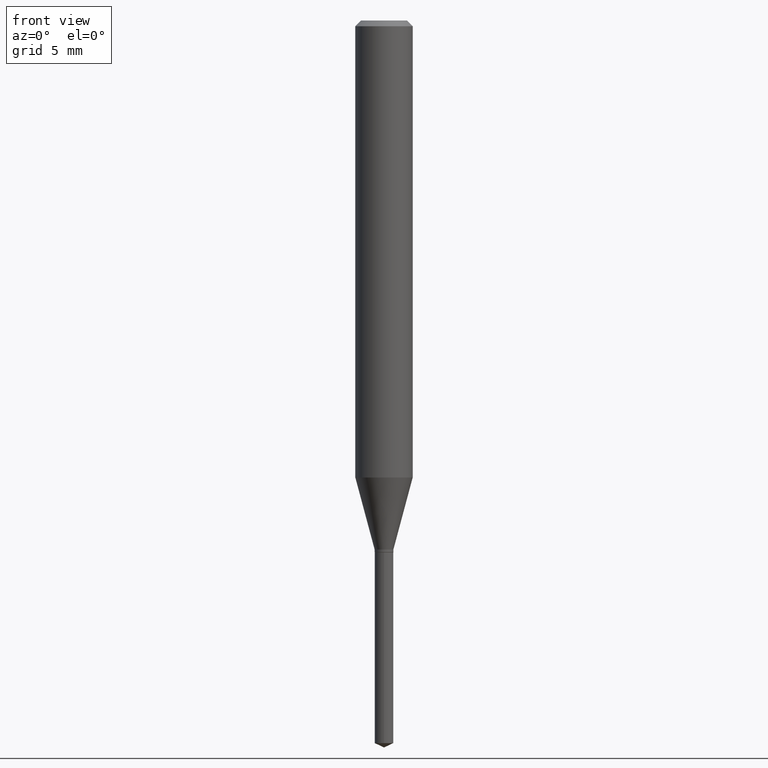
[diagram: clean part render]
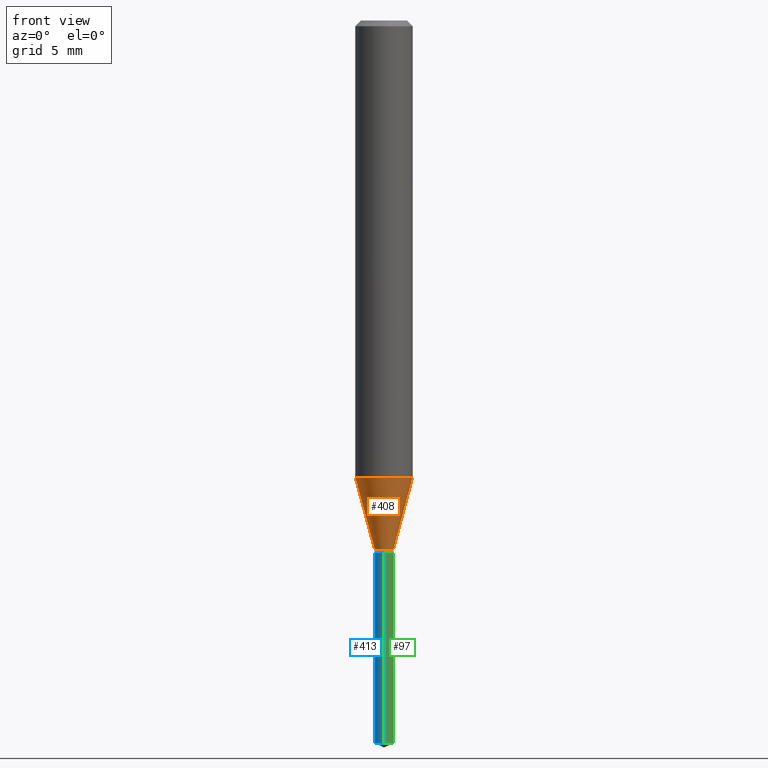
[diagram: same view with three faces highlighted in distinct colors, each labeled with its STEP entity id]
A machine part, front view with three faces highlighted in distinct colors.
Their STEP definitions:

[orange] entity #408 — the highlighted conical surface has half-angle 15 deg.
#1 = VERTEX_POINT ( 'NONE', #330 ) ;
#3 = AXIS2_PLACEMENT_3D ( 'NONE', #60, #381, #70 ) ;
#26 = DIRECTION ( 'NONE',  ( -0.2588190451025213501, 5.211531920934551042E-15, 0.9659258262890682012 ) ) ;
#58 = CARTESIAN_POINT ( 'NONE',  ( 2.299598989431700529E-29, -3.283217900026443125E-15, -0.9403509803991370042 ) ) ;
#60 = CARTESIAN_POINT ( 'NONE',  ( 2.662381889293757988E-29, -3.801175733598532543E-15, -1.088700000000000001 ) ) ;
#67 = FACE_OUTER_BOUND ( 'NONE', #385, .T. ) ;
#70 = DIRECTION ( 'NONE',  ( 1.000000000000000000, -6.982962677686261977E-15, 0.000000000000000000 ) ) ;
#76 = VERTEX_POINT ( 'NONE', #443 ) ;
#88 = EDGE_CURVE ( 'NONE', #188, #348, #405, .T. ) ;
#89 = ORIENTED_EDGE ( 'NONE', *, *, #480, .F. ) ;
#94 = CARTESIAN_POINT ( 'NONE',  ( -0.01930000000000000118, -3.673293411144767685E-15, -1.088700000000000001 ) ) ;
#106 = VECTOR ( 'NONE', #26, 39.37007874015747433 ) ;
#107 = CONICAL_SURFACE ( 'NONE', #195, 0.01930000000000000118, 0.2617993877991500740 ) ;
#126 = EDGE_CURVE ( 'NONE', #188, #76, #223, .T. ) ;
#130 = DIRECTION ( 'NONE',  ( 1.000000000000000000, -6.982962677686261977E-15, 0.000000000000000000 ) ) ;
#140 = CARTESIAN_POINT ( 'NONE',  ( -0.05905000000000010241, -2.863642414560104027E-15, -0.9403509803991370042 ) ) ;
#159 = ORIENTED_EDGE ( 'NONE', *, *, #88, .F. ) ;
#170 = VECTOR ( 'NONE', #341, 39.37007874015747433 ) ;
#188 = VERTEX_POINT ( 'NONE', #94 ) ;
#192 = DIRECTION ( 'NONE',  ( -2.445468806185136597E-29, 3.491481338843145583E-15, 1.000000000000000000 ) ) ;
#195 = AXIS2_PLACEMENT_3D ( 'NONE', #377, #192, #130 ) ;
#210 = DIRECTION ( 'NONE',  ( 1.000000000000000000, -6.982962677686267499E-15, 0.000000000000000000 ) ) ;
#214 = CIRCLE ( 'NONE', #442, 0.05905000000000010935 ) ;
#223 = CIRCLE ( 'NONE', #3, 0.01930000000000000118 ) ;
#244 = LINE ( 'NONE', #275, #170 ) ;
#259 = CARTESIAN_POINT ( 'NONE',  ( -0.01930000000000000118, -3.664040985596833322E-15, -1.088700000000000001 ) ) ;
#275 = CARTESIAN_POINT ( 'NONE',  ( 0.01930000000000000118, -3.935946913277877352E-15, -1.088700000000000001 ) ) ;
#330 = CARTESIAN_POINT ( 'NONE',  ( 0.05905000000000010241, -3.695561846143818440E-15, -0.9403509803991370042 ) ) ;
#341 = DIRECTION ( 'NONE',  ( 0.2588190451025213501, 1.565188264969621968E-15, 0.9659258262890682012 ) ) ;
#344 = ORIENTED_EDGE ( 'NONE', *, *, #126, .T. ) ;
#348 = VERTEX_POINT ( 'NONE', #140 ) ;
#368 = EDGE_CURVE ( 'NONE', #76, #1, #244, .T. ) ;
#377 = CARTESIAN_POINT ( 'NONE',  ( 2.662381889293757988E-29, -3.801175733598532543E-15, -1.088700000000000001 ) ) ;
#381 = DIRECTION ( 'NONE',  ( -2.445468806185136597E-29, 3.491481338843145583E-15, 1.000000000000000000 ) ) ;
#382 = ORIENTED_EDGE ( 'NONE', *, *, #368, .T. ) ;
#385 = EDGE_LOOP ( 'NONE', ( #159, #344, #382, #89 ) ) ;
#405 = LINE ( 'NONE', #259, #106 ) ;
#408 = ADVANCED_FACE ( 'NONE', ( #67 ), #107, .T. ) ;
#442 = AXIS2_PLACEMENT_3D ( 'NONE', #58, #468, #210 ) ;
#443 = CARTESIAN_POINT ( 'NONE',  ( 0.01930000000000000118, -3.935946913277877352E-15, -1.088700000000000001 ) ) ;
#468 = DIRECTION ( 'NONE',  ( -2.445468806185136597E-29, 3.491481338843145583E-15, 1.000000000000000000 ) ) ;
#480 = EDGE_CURVE ( 'NONE', #348, #1, #214, .T. ) ;

[blue] entity #413 — the highlighted cylindrical surface (edge-blend (fillet) strip) has radius 0.4902 mm, axis along (-0, 0, 1).
#14 = CARTESIAN_POINT ( 'NONE',  ( 3.636657855806963500E-29, -5.192182022620209705E-15, -1.487100262197608380 ) ) ;
#17 = CARTESIAN_POINT ( 'NONE',  ( 1.371347480017260423E-16, 0.01929999999999617785, -1.094499999999999806 ) ) ;
#18 = FACE_OUTER_BOUND ( 'NONE', #171, .T. ) ;
#78 = ORIENTED_EDGE ( 'NONE', *, *, #270, .T. ) ;
#138 = AXIS2_PLACEMENT_3D ( 'NONE', #384, #153, #450 ) ;
#144 = LINE ( 'NONE', #288, #338 ) ;
#153 = DIRECTION ( 'NONE',  ( -2.445470214571802116E-29, 3.491479321953280158E-15, 1.000000000000000000 ) ) ;
#161 = CARTESIAN_POINT ( 'NONE',  ( -1.347711796793085704E-16, -0.01930000000000519148, -1.487100262197608380 ) ) ;
#171 = EDGE_LOOP ( 'NONE', ( #440, #78, #281, #261 ) ) ;
#172 = DIRECTION ( 'NONE',  ( -6.982962677686265133E-15, -1.000000000000000000, 0.000000000000000000 ) ) ;
#174 = EDGE_CURVE ( 'NONE', #175, #367, #370, .T. ) ;
#175 = VERTEX_POINT ( 'NONE', #181 ) ;
#176 = DIRECTION ( 'NONE',  ( -2.445470214571802116E-29, 3.491479321953280158E-15, 1.000000000000000000 ) ) ;
#177 = AXIS2_PLACEMENT_3D ( 'NONE', #401, #176, #172 ) ;
#181 = CARTESIAN_POINT ( 'NONE',  ( 1.371347480017357058E-16, 0.01929999999999481436, -1.487100262197608380 ) ) ;
#193 = AXIS2_PLACEMENT_3D ( 'NONE', #14, #455, #272 ) ;
#251 = VERTEX_POINT ( 'NONE', #399 ) ;
#258 = DIRECTION ( 'NONE',  ( -2.445470214571802396E-29, 3.491479321953280158E-15, 1.000000000000000000 ) ) ;
#261 = ORIENTED_EDGE ( 'NONE', *, *, #400, .F. ) ;
#270 = EDGE_CURVE ( 'NONE', #175, #353, #372, .T. ) ;
#272 = DIRECTION ( 'NONE',  ( -6.982962677686265133E-15, -1.000000000000000000, 0.000000000000000000 ) ) ;
#281 = ORIENTED_EDGE ( 'NONE', *, *, #291, .T. ) ;
#288 = CARTESIAN_POINT ( 'NONE',  ( -1.347711796793181600E-16, -0.01930000000000382104, -1.094499999999999806 ) ) ;
#291 = EDGE_CURVE ( 'NONE', #353, #251, #144, .T. ) ;
#312 = CARTESIAN_POINT ( 'NONE',  ( 1.371347480017357551E-16, 0.01929999999999617785, -1.094499999999999806 ) ) ;
#323 = CIRCLE ( 'NONE', #138, 0.01930000000000000118 ) ;
#338 = VECTOR ( 'NONE', #258, 39.37007874015748143 ) ;
#353 = VERTEX_POINT ( 'NONE', #161 ) ;
#367 = VERTEX_POINT ( 'NONE', #312 ) ;
#370 = LINE ( 'NONE', #17, #388 ) ;
#372 = CIRCLE ( 'NONE', #193, 0.01930000000000000118 ) ;
#374 = DIRECTION ( 'NONE',  ( -2.445470214571802396E-29, 3.491479321953280158E-15, 1.000000000000000000 ) ) ;
#384 = CARTESIAN_POINT ( 'NONE',  ( 2.676565608369631794E-29, -3.821426325363822773E-15, -1.094499999999999806 ) ) ;
#388 = VECTOR ( 'NONE', #374, 39.37007874015748143 ) ;
#399 = CARTESIAN_POINT ( 'NONE',  ( -1.347711796793181600E-16, -0.01930000000000382104, -1.094499999999999806 ) ) ;
#400 = EDGE_CURVE ( 'NONE', #367, #251, #323, .T. ) ;
#401 = CARTESIAN_POINT ( 'NONE',  ( 2.676565608369631794E-29, -3.821426325363822773E-15, -1.094499999999999806 ) ) ;
#413 = ADVANCED_FACE ( 'NONE', ( #18 ), #439, .T. ) ;
#439 = CYLINDRICAL_SURFACE ( 'NONE', #177, 0.01930000000000000118 ) ;
#440 = ORIENTED_EDGE ( 'NONE', *, *, #174, .F. ) ;
#450 = DIRECTION ( 'NONE',  ( -6.982962677686265133E-15, -1.000000000000000000, 0.000000000000000000 ) ) ;
#455 = DIRECTION ( 'NONE',  ( -2.445470214571802116E-29, 3.491479321953280158E-15, 1.000000000000000000 ) ) ;

[green] entity #97 — the highlighted cylindrical surface (edge-blend (fillet) strip) has radius 0.4902 mm, axis along (-0, 0, 1).
#17 = CARTESIAN_POINT ( 'NONE',  ( 1.371347480017260423E-16, 0.01929999999999617785, -1.094499999999999806 ) ) ;
#22 = FACE_OUTER_BOUND ( 'NONE', #489, .T. ) ;
#31 = ORIENTED_EDGE ( 'NONE', *, *, #174, .T. ) ;
#64 = CARTESIAN_POINT ( 'NONE',  ( 3.636657855806963500E-29, -5.192182022620209705E-15, -1.487100262197608380 ) ) ;
#69 = EDGE_CURVE ( 'NONE', #251, #367, #486, .T. ) ;
#73 = ORIENTED_EDGE ( 'NONE', *, *, #291, .F. ) ;
#97 = ADVANCED_FACE ( 'NONE', ( #22 ), #230, .T. ) ;
#109 = DIRECTION ( 'NONE',  ( -2.445470214571802116E-29, 3.491479321953280158E-15, 1.000000000000000000 ) ) ;
#144 = LINE ( 'NONE', #288, #338 ) ;
#161 = CARTESIAN_POINT ( 'NONE',  ( -1.347711796793085704E-16, -0.01930000000000519148, -1.487100262197608380 ) ) ;
#174 = EDGE_CURVE ( 'NONE', #175, #367, #370, .T. ) ;
#175 = VERTEX_POINT ( 'NONE', #181 ) ;
#181 = CARTESIAN_POINT ( 'NONE',  ( 1.371347480017357058E-16, 0.01929999999999481436, -1.487100262197608380 ) ) ;
#191 = ORIENTED_EDGE ( 'NONE', *, *, #69, .F. ) ;
#230 = CYLINDRICAL_SURFACE ( 'NONE', #454, 0.01930000000000000118 ) ;
#233 = AXIS2_PLACEMENT_3D ( 'NONE', #64, #375, #316 ) ;
#240 = ORIENTED_EDGE ( 'NONE', *, *, #350, .T. ) ;
#251 = VERTEX_POINT ( 'NONE', #399 ) ;
#258 = DIRECTION ( 'NONE',  ( -2.445470214571802396E-29, 3.491479321953280158E-15, 1.000000000000000000 ) ) ;
#267 = AXIS2_PLACEMENT_3D ( 'NONE', #378, #109, #294 ) ;
#288 = CARTESIAN_POINT ( 'NONE',  ( -1.347711796793181600E-16, -0.01930000000000382104, -1.094499999999999806 ) ) ;
#291 = EDGE_CURVE ( 'NONE', #353, #251, #144, .T. ) ;
#293 = DIRECTION ( 'NONE',  ( -2.445470214571802116E-29, 3.491479321953280158E-15, 1.000000000000000000 ) ) ;
#294 = DIRECTION ( 'NONE',  ( -6.982962677686265133E-15, -1.000000000000000000, 0.000000000000000000 ) ) ;
#312 = CARTESIAN_POINT ( 'NONE',  ( 1.371347480017357551E-16, 0.01929999999999617785, -1.094499999999999806 ) ) ;
#316 = DIRECTION ( 'NONE',  ( -6.982962677686265133E-15, -1.000000000000000000, 0.000000000000000000 ) ) ;
#338 = VECTOR ( 'NONE', #258, 39.37007874015748143 ) ;
#350 = EDGE_CURVE ( 'NONE', #353, #175, #397, .T. ) ;
#353 = VERTEX_POINT ( 'NONE', #161 ) ;
#367 = VERTEX_POINT ( 'NONE', #312 ) ;
#370 = LINE ( 'NONE', #17, #388 ) ;
#374 = DIRECTION ( 'NONE',  ( -2.445470214571802396E-29, 3.491479321953280158E-15, 1.000000000000000000 ) ) ;
#375 = DIRECTION ( 'NONE',  ( -2.445470214571802116E-29, 3.491479321953280158E-15, 1.000000000000000000 ) ) ;
#378 = CARTESIAN_POINT ( 'NONE',  ( 2.676565608369631794E-29, -3.821426325363822773E-15, -1.094499999999999806 ) ) ;
#388 = VECTOR ( 'NONE', #374, 39.37007874015748143 ) ;
#397 = CIRCLE ( 'NONE', #233, 0.01930000000000000118 ) ;
#399 = CARTESIAN_POINT ( 'NONE',  ( -1.347711796793181600E-16, -0.01930000000000382104, -1.094499999999999806 ) ) ;
#409 = CARTESIAN_POINT ( 'NONE',  ( 2.676565608369631794E-29, -3.821426325363822773E-15, -1.094499999999999806 ) ) ;
#454 = AXIS2_PLACEMENT_3D ( 'NONE', #409, #293, #471 ) ;
#471 = DIRECTION ( 'NONE',  ( -6.982962677686265133E-15, -1.000000000000000000, 0.000000000000000000 ) ) ;
#486 = CIRCLE ( 'NONE', #267, 0.01930000000000000118 ) ;
#489 = EDGE_LOOP ( 'NONE', ( #240, #31, #191, #73 ) ) ;